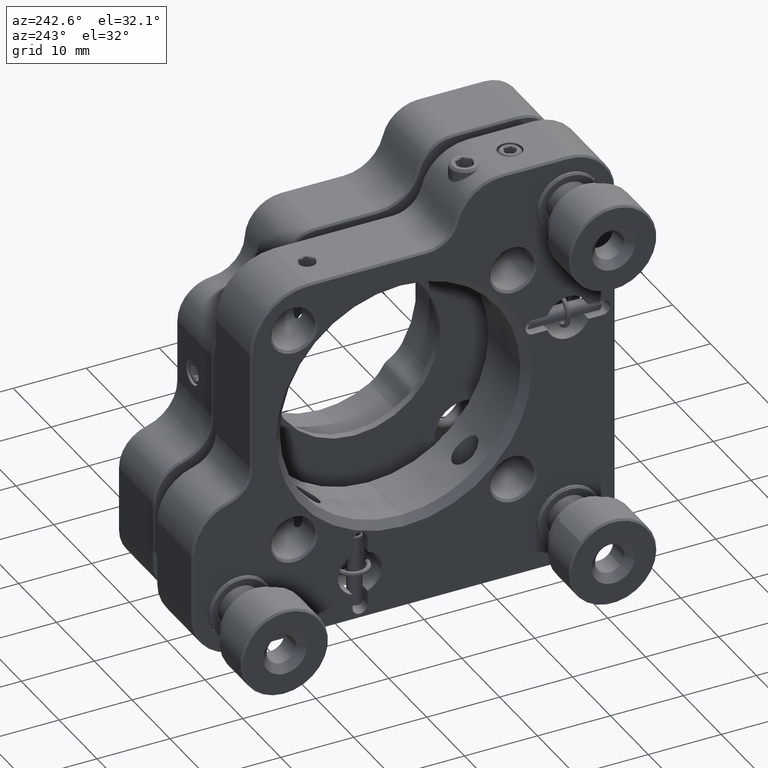
[diagram: clean part render]
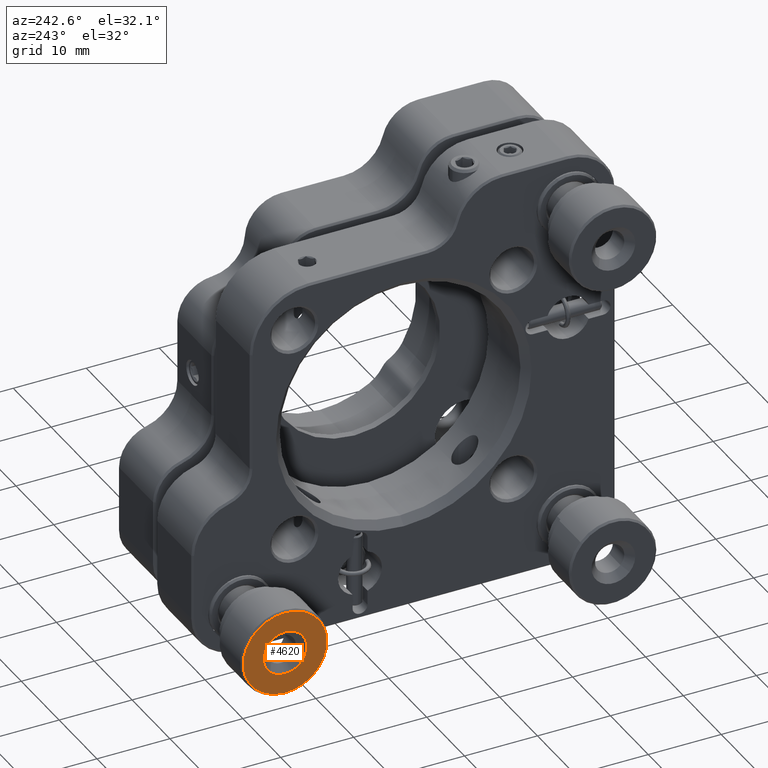
[diagram: same view with one face highlighted and labeled with its STEP entity id]
A machine part, auxiliary view. The second image highlights one B-rep face of the part: STEP entity #4620.
In plain terms, the highlighted planar face has unit normal (1, -0, -0).
Its self-contained STEP definition (entity closure, byte-faithful):
#469 = CARTESIAN_POINT ( 'NONE',  ( -30.08091008047272297, 14.26806748824066595, 32.50000000000023448 ) ) ;
#1136 = CARTESIAN_POINT ( 'NONE',  ( -30.08091008047272297, 18.15478802730551777, 28.26255932770624213 ) ) ;
#3800 = EDGE_CURVE ( 'NONE', #32264, #31705, #10366, .T. ) ;
#4064 = DIRECTION ( 'NONE',  ( 0.000000000000000000, -0.6759513980982356784, 0.7369462038772168766 ) ) ;
#4620 = ADVANCED_FACE ( 'NONE', ( #12641, #28478 ), #8954, .F. ) ;
#4662 = AXIS2_PLACEMENT_3D ( 'NONE', #469, #6351, #28451 ) ;
#5460 = CIRCLE ( 'NONE', #15024, 5.749999999999994671 ) ;
#6128 = DIRECTION ( 'NONE',  ( 1.000000000000000000, -7.922062688005255894E-62, -7.191826186505981175E-61 ) ) ;
#6351 = DIRECTION ( 'NONE',  ( 1.000000000000000000, -6.641808973389058070E-61, -8.143817142187465843E-62 ) ) ;
#7541 = CIRCLE ( 'NONE', #15782, 5.749999999999994671 ) ;
#7715 = ORIENTED_EDGE ( 'NONE', *, *, #3800, .T. ) ;
#8954 = PLANE ( 'NONE',  #11631 ) ;
#10366 = CIRCLE ( 'NONE', #10892, 2.999999999999996003 ) ;
#10892 = AXIS2_PLACEMENT_3D ( 'NONE', #24519, #16314, #30089 ) ;
#11560 = CARTESIAN_POINT ( 'NONE',  ( -30.08091008047272297, 10.38134694917581413, 36.73744067229422683 ) ) ;
#11631 = AXIS2_PLACEMENT_3D ( 'NONE', #34053, #6128, #34410 ) ;
#12641 = FACE_BOUND ( 'NONE', #18551, .T. ) ;
#15024 = AXIS2_PLACEMENT_3D ( 'NONE', #27091, #32430, #18359 ) ;
#15782 = AXIS2_PLACEMENT_3D ( 'NONE', #18029, #20838, #4064 ) ;
#16056 = EDGE_CURVE ( 'NONE', #19579, #23044, #7541, .T. ) ;
#16314 = DIRECTION ( 'NONE',  ( 1.000000000000000000, -6.641808973389058070E-61, -8.143817142187465843E-62 ) ) ;
#18029 = CARTESIAN_POINT ( 'NONE',  ( -30.08091008047272297, 14.26806748824066595, 32.50000000000023448 ) ) ;
#18137 = CIRCLE ( 'NONE', #4662, 2.999999999999996003 ) ;
#18359 = DIRECTION ( 'NONE',  ( 0.000000000000000000, -0.6759513980982356784, 0.7369462038772168766 ) ) ;
#18551 = EDGE_LOOP ( 'NONE', ( #26823, #7715 ) ) ;
#19255 = CARTESIAN_POINT ( 'NONE',  ( -30.08091008047272297, 12.24021329394596158, 34.71083861163188544 ) ) ;
#19579 = VERTEX_POINT ( 'NONE', #1136 ) ;
#20838 = DIRECTION ( 'NONE',  ( -1.000000000000000000, 6.641808973389058070E-61, 8.143817142187465843E-62 ) ) ;
#22381 = CARTESIAN_POINT ( 'NONE',  ( -30.08091008047272297, 16.29592168253536855, 30.28916138836859062 ) ) ;
#23044 = VERTEX_POINT ( 'NONE', #11560 ) ;
#23086 = ORIENTED_EDGE ( 'NONE', *, *, #34066, .T. ) ;
#24519 = CARTESIAN_POINT ( 'NONE',  ( -30.08091008047272297, 14.26806748824066595, 32.50000000000023448 ) ) ;
#25127 = EDGE_CURVE ( 'NONE', #31705, #32264, #18137, .T. ) ;
#26823 = ORIENTED_EDGE ( 'NONE', *, *, #25127, .T. ) ;
#27091 = CARTESIAN_POINT ( 'NONE',  ( -30.08091008047272297, 14.26806748824066595, 32.50000000000023448 ) ) ;
#28451 = DIRECTION ( 'NONE',  ( 0.000000000000000000, -0.6759513980982356784, 0.7369462038772169876 ) ) ;
#28478 = FACE_OUTER_BOUND ( 'NONE', #31199, .T. ) ;
#30089 = DIRECTION ( 'NONE',  ( 0.000000000000000000, -0.6759513980982356784, 0.7369462038772169876 ) ) ;
#31199 = EDGE_LOOP ( 'NONE', ( #23086, #31755 ) ) ;
#31705 = VERTEX_POINT ( 'NONE', #22381 ) ;
#31755 = ORIENTED_EDGE ( 'NONE', *, *, #16056, .T. ) ;
#32264 = VERTEX_POINT ( 'NONE', #19255 ) ;
#32430 = DIRECTION ( 'NONE',  ( -1.000000000000000000, 6.641808973389058070E-61, 8.143817142187465843E-62 ) ) ;
#34053 = CARTESIAN_POINT ( 'NONE',  ( -30.08091008047272297, 14.26806748824066595, 32.50000000000023448 ) ) ;
#34066 = EDGE_CURVE ( 'NONE', #23044, #19579, #5460, .T. ) ;
#34410 = DIRECTION ( 'NONE',  ( 4.764496072112442147E-61, -0.6759513980982355674, 0.7369462038772169876 ) ) ;